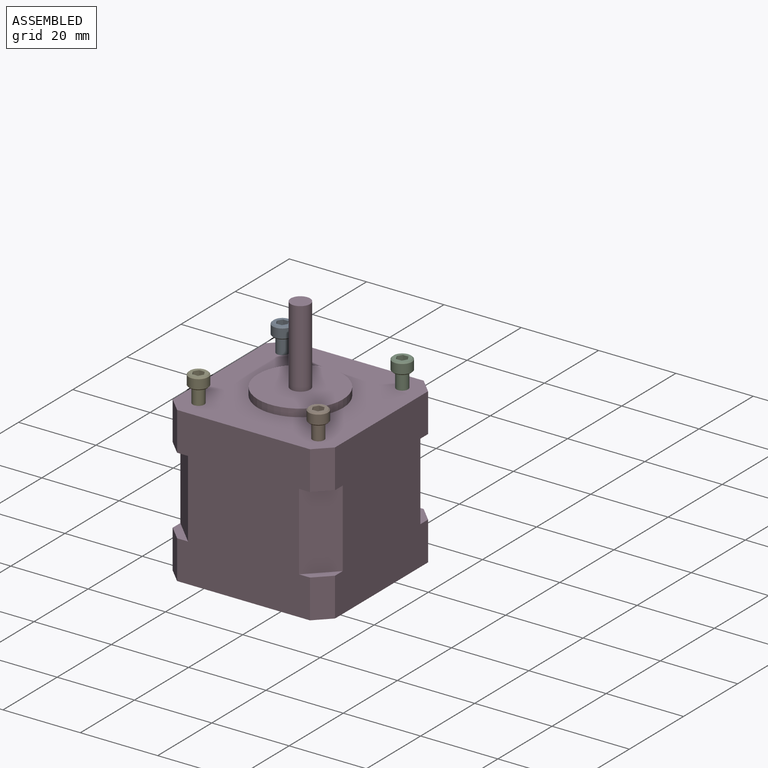
[diagram: assembled view]
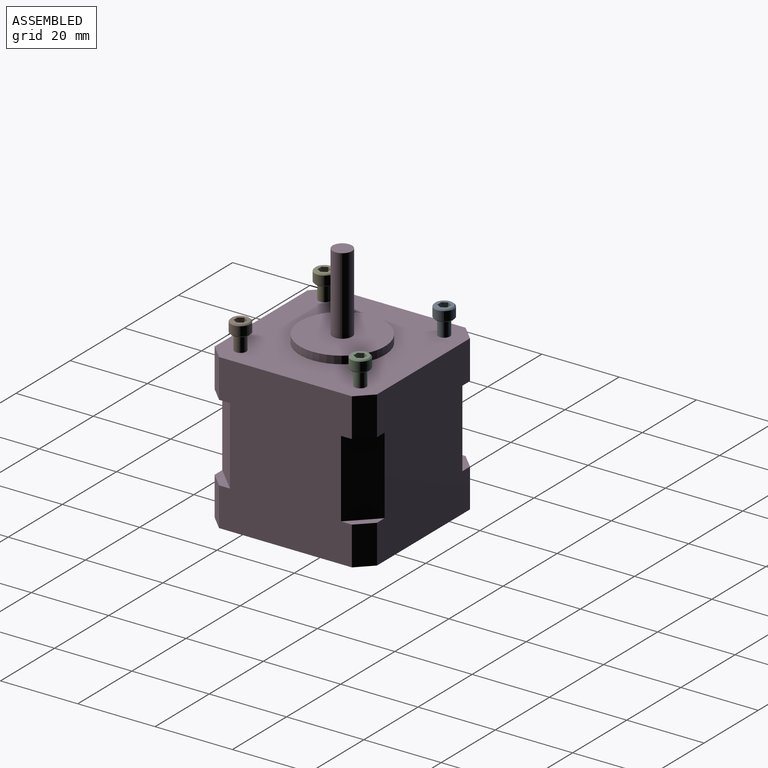
[diagram: assembled view, second angle]
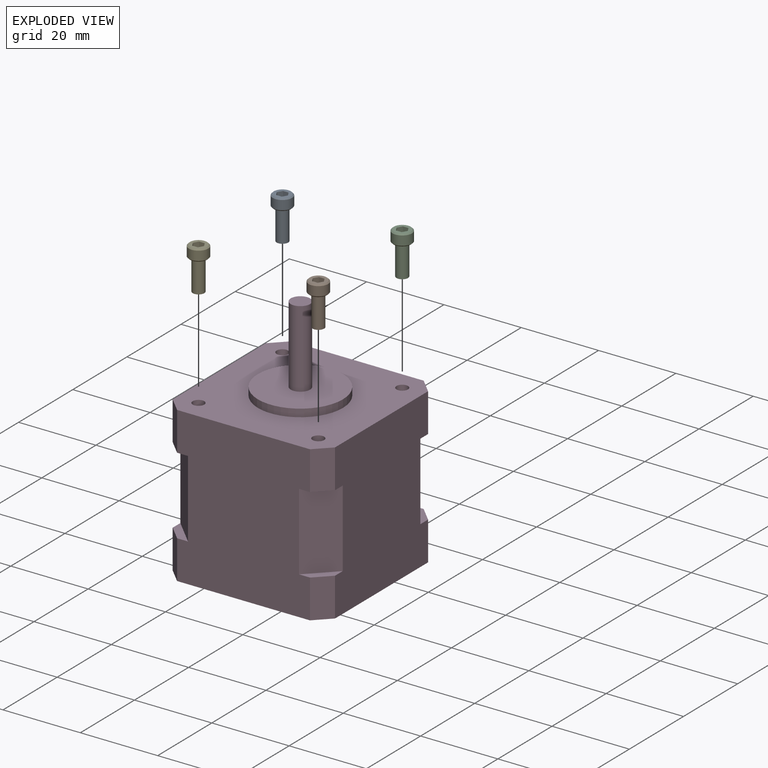
[diagram: exploded view]
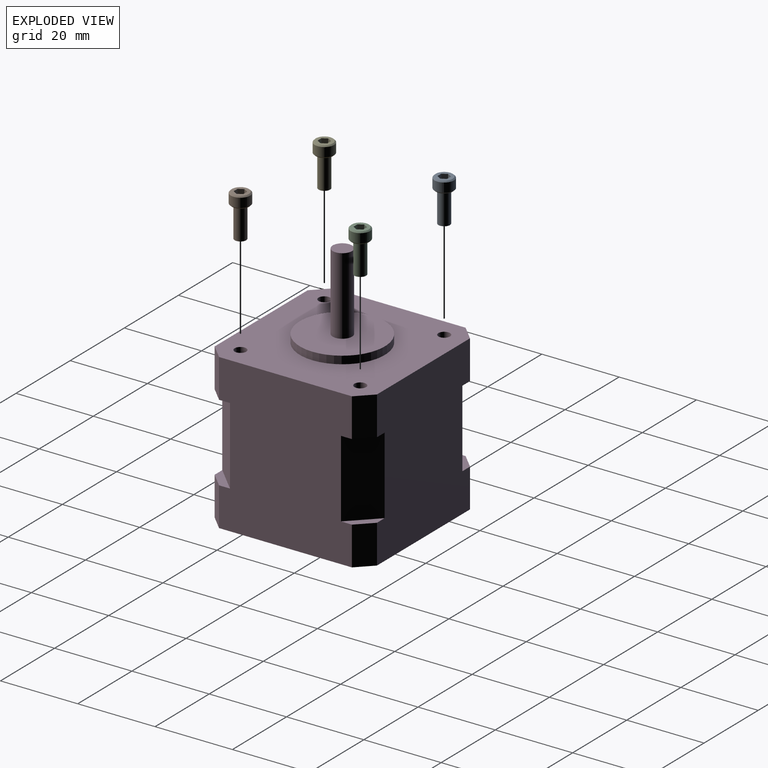
[diagram: exploded view, second angle]
ASSEMBLY  parts=5 mates=4
PART A: 14 faces, bbox 5x5x11 mm
  f0: plane 4.4x4.4mm, normal (0,0,1), area 9.8mm2, adj f5,f7,f8,f9,f10,f11,f12
  f1: cylinder r=2.5mm len=5mm, axis (0,0,1), area 37.7mm2, adj f5,f6
  f2: plane 4.4x4.4mm, normal (0,0,-1), area 8.1mm2, adj f3,f6
  f3: cylinder r=1.5mm len=8mm, axis (0,0,1), area 75.4mm2, adj f2,f4
  f4: plane 3x3mm, normal (0,0,-1), area 7.1mm2, adj f3
  f5: cone r=2.2mm half-angle=45deg, axis (0,0,-1), area 6.3mm2, adj f0,f1
  f6: cone r=2.5mm half-angle=45deg, axis (0,0,1), area 6.3mm2, adj f1,f2
  f7: plane 1.5x1.25mm, normal (-0.87,0.5,0), area 2.2mm2, adj f0,f8,f12,f13
  f8: plane 1.5x1.25mm, normal (-0.87,-0.5,0), area 2.2mm2, adj f0,f7,f9,f13
  f9: plane 1.5x1.44mm, normal (0,-1,0), area 2.2mm2, adj f0,f8,f10,f13
  f10: plane 1.5x1.25mm, normal (0.87,-0.5,0), area 2.2mm2, adj f0,f9,f11,f13
  f11: plane 1.5x1.25mm, normal (0.87,0.5,0), area 2.2mm2, adj f0,f10,f12,f13
  f12: plane 1.5x1.44mm, normal (0,1,0), area 2.2mm2, adj f0,f7,f11,f13
  f13: plane 2.89x2.5mm, normal (0,0,1), area 5.4mm2, adj f7,f8,f9,f10,f11,f12
PART B: same geometry as A
PART C: same geometry as A
PART D: 46 faces, bbox 42x62x42 mm
  f0: cylinder r=1.5mm len=5mm, axis (0,1,0), area 47.1mm2, adj f17,f45
  f1: cylinder r=1.5mm len=5mm, axis (0,1,0), area 47.1mm2, adj f17,f43
  f2: cylinder r=1.5mm len=5mm, axis (0,1,0), area 47.1mm2, adj f17,f41
  f3: cylinder r=1.5mm len=5mm, axis (0,1,0), area 47.1mm2, adj f17,f39
  f4: plane 20x6.64mm, normal (-0.71,0,-0.71), area 187.9mm2, adj f8,f15,f24,f33
  f5: plane 20x6.64mm, normal (0.71,0,-0.71), area 187.9mm2, adj f8,f9,f22,f31
  f6: plane 20x6.64mm, normal (0.71,0,0.71), area 187.9mm2, adj f9,f10,f20,f29
  f7: plane 20x6.64mm, normal (-0.71,0,0.71), area 187.9mm2, adj f10,f15,f18,f27
  f8: plane 40x34.37mm, normal (0,0,-1), area 1261.6mm2, adj f4,f5,f16,f17,f22,f23,f24,f25
  f9: plane 40x34.37mm, normal (1,0,0), area 1261.6mm2, adj f5,f6,f16,f17,f20,f21,f22,f23
  f10: plane 40x34.37mm, normal (0,0,1), area 1261.6mm2, adj f6,f7,f16,f17,f18,f19,f20,f21
  f11: cylinder r=1.5mm len=5mm, axis (0,1,0), area 47.1mm2, adj f16,f38
  f12: cylinder r=1.5mm len=5mm, axis (0,1,0), area 47.1mm2, adj f16,f40
  f13: cylinder r=1.5mm len=5mm, axis (0,1,0), area 47.1mm2, adj f16,f42
  f14: cylinder r=1.5mm len=5mm, axis (0,1,0), area 47.1mm2, adj f16,f44
  f15: plane 40x34.37mm, normal (-1,0,0), area 1261.6mm2, adj f4,f7,f16,f17,f18,f19,f24,f25
  f16: plane 42x42mm, normal (0,-1,0), area 1706.6mm2, adj f8,f9,f10,f11,f12,f13,f14,f15
  f17: plane 42x42mm, normal (0,1,0), area 1326.5mm2, adj f0,f1,f2,f3,f8,f9,f10,f15
  f18: plane 6.64x6.64mm, normal (0,1,0), area 14.8mm2, adj f7,f10,f15,f19
  f19: plane 10x3.82mm, normal (-0.71,0,0.71), area 54mm2, adj f10,f15,f16,f18
  f20: plane 6.64x6.64mm, normal (0,1,0), area 14.8mm2, adj f6,f9,f10,f21
  f21: plane 10x3.82mm, normal (0.71,0,0.71), area 54mm2, adj f9,f10,f16,f20
  f22: plane 6.64x6.64mm, normal (0,1,0), area 14.8mm2, adj f5,f8,f9,f23
  f23: plane 10x3.82mm, normal (0.71,0,-0.71), area 54mm2, adj f8,f9,f16,f22
  f24: plane 6.64x6.64mm, normal (0,1,0), area 14.8mm2, adj f4,f8,f15,f25
  f25: plane 10x3.82mm, normal (-0.71,0,-0.71), area 54mm2, adj f8,f15,f16,f24
  f26: plane 10x3.82mm, normal (-0.71,0,0.71), area 54mm2, adj f10,f15,f17,f27
  f27: plane 6.64x6.64mm, normal (0,-1,0), area 14.8mm2, adj f7,f10,f15,f26
  f28: plane 10x3.82mm, normal (0.71,0,0.71), area 54mm2, adj f9,f10,f17,f29
  f29: plane 6.64x6.64mm, normal (0,-1,0), area 14.8mm2, adj f6,f9,f10,f28
  f30: plane 10x3.82mm, normal (0.71,0,-0.71), area 54mm2, adj f8,f9,f17,f31
  f31: plane 6.64x6.64mm, normal (0,-1,0), area 14.8mm2, adj f5,f8,f9,f30
  f32: plane 10x3.82mm, normal (-0.71,0,-0.71), area 54mm2, adj f8,f15,f17,f33
  f33: plane 6.64x6.64mm, normal (0,-1,0), area 14.8mm2, adj f4,f8,f15,f32
  f34: cylinder r=11mm len=22mm, axis (0,-1,0), area 138.2mm2, adj f17,f35
  f35: plane 22x22mm, normal (0,1,0), area 360.5mm2, adj f34,f36
  f36: cylinder r=2.5mm len=20mm, axis (0,-1,0), area 314.2mm2, adj f35,f37
  f37: plane 5x5mm, normal (0,1,0), area 19.6mm2, adj f36
  f38: plane 3x3mm, normal (0,-1,0), area 7.1mm2, adj f11
  f39: plane 3x3mm, normal (0,1,0), area 7.1mm2, adj f3
  f40: plane 3x3mm, normal (0,-1,0), area 7.1mm2, adj f12
  f41: plane 3x3mm, normal (0,1,0), area 7.1mm2, adj f2
  f42: plane 3x3mm, normal (0,-1,0), area 7.1mm2, adj f13
  f43: plane 3x3mm, normal (0,1,0), area 7.1mm2, adj f1
  f44: plane 3x3mm, normal (0,-1,0), area 7.1mm2, adj f14
  f45: plane 3x3mm, normal (0,1,0), area 7.1mm2, adj f0
PART E: same geometry as A
PLACE A t=(-23.55,68.29,84.19)mm
PLACE B t=(7.45,37.29,84.19)mm
PLACE C t=(7.45,68.29,84.19)mm
PLACE D rot(axis=(1,0,0),90deg) t=(-8.05,52.79,85.19)mm
PLACE E t=(-23.55,37.29,84.19)mm
MATE fastened B.f1 <-> D.f3  axis (0,0,1) through (7.45,37.29,89.19)mm
MATE fastened C.f1 <-> D.f0  axis (0,0,-1) through (7.45,68.29,89.19)mm
MATE fastened A.f1 <-> D.f1  axis (0,0,1) through (-23.55,68.29,89.19)mm
MATE fastened E.f1 <-> D.f2  axis (0,0,-1) through (-23.55,37.29,89.19)mm
